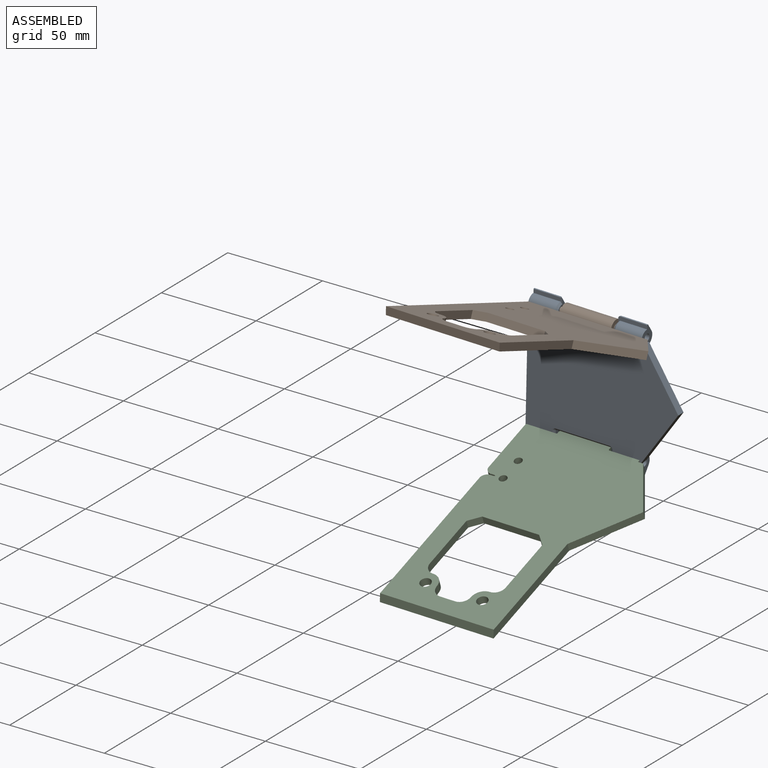
[diagram: assembled view]
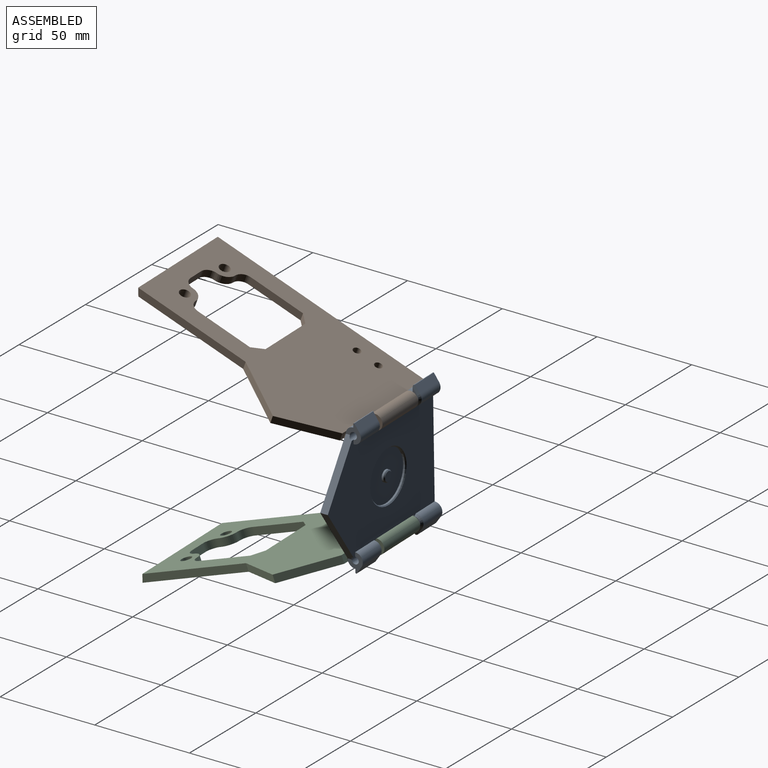
[diagram: assembled view, second angle]
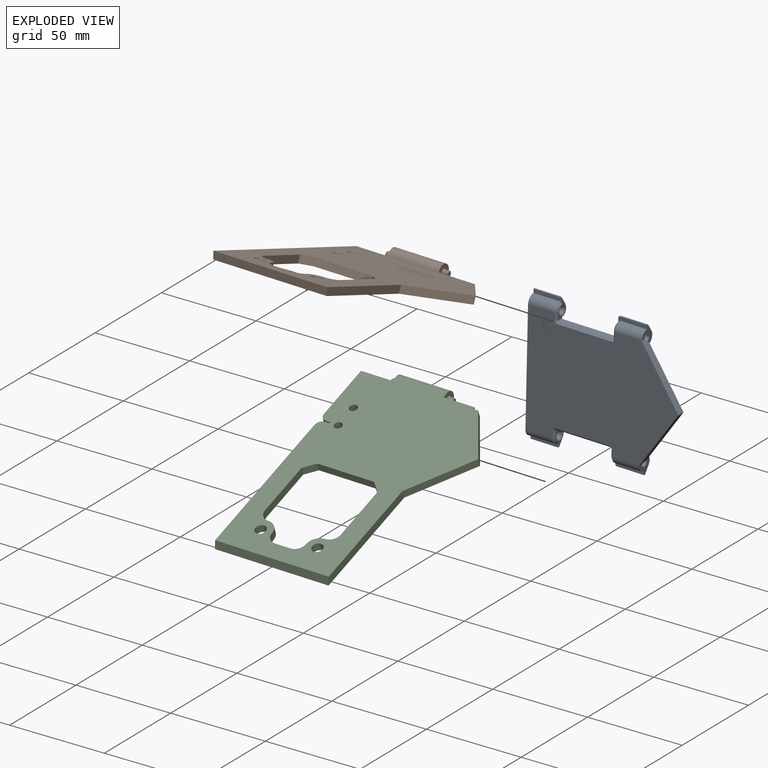
[diagram: exploded view]
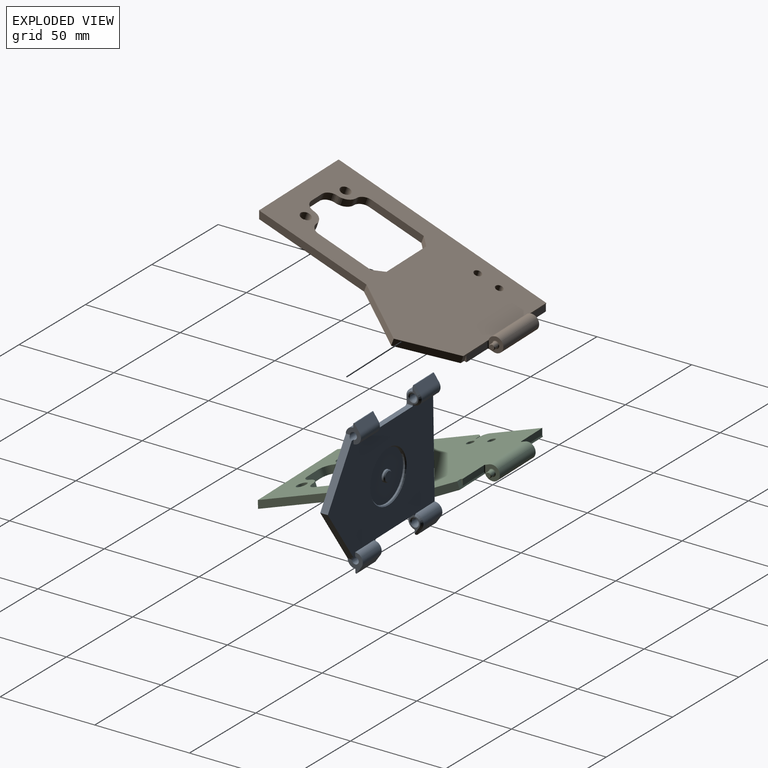
[diagram: exploded view, second angle]
ASSEMBLY  parts=3 mates=2
PART A: 73 faces, bbox 72.4x8x80 mm
  f0: cylinder r=4mm len=14.25mm, axis (0,0,1), area 89.5mm2, adj f4,f9,f39,f60
  f1: cylinder r=4mm len=14.25mm, axis (0,0,1), area 124.2mm2, adj f5,f20,f38,f43
  f2: cylinder r=4mm len=14.25mm, axis (0,0,1), area 89.5mm2, adj f4,f11,f35,f54
  f3: cylinder r=4mm len=14.25mm, axis (0,0,1), area 124.2mm2, adj f5,f9,f34,f45
  f4: plane 80x60mm, normal (0,-1,0), area 3886.9mm2, adj f0,f2,f7,f8,f9,f18,f21,f55
  f5: plane 80x56.3mm, normal (0,1,0), area 3126mm2, adj f1,f3,f8,f9,f10,f11,f12,f13
  f6: cylinder r=1.85mm len=14.75mm, axis (0,0,1), area 171.5mm2, adj f9,f27
  f7: cylinder r=4mm len=14.25mm, axis (0,0,1), area 89.5mm2, adj f4,f9,f33,f53
  f8: plane 30x20mm, normal (-0.55,0,-0.83), area 141mm2, adj f4,f5,f10,f11,f18
  f9: plane 72.36x8mm, normal (0,0,1), area 300.9mm2, adj f0,f3,f4,f5,f6,f7,f16,f17
  f10: cylinder r=1.85mm len=15.98mm, axis (0,0,1), area 173.7mm2, adj f5,f8,f11,f26
  f11: plane 10.18x8mm, normal (0,0,-1), area 33.1mm2, adj f2,f5,f8,f10,f12,f35,f36,f50
  f12: cylinder r=4mm len=14.25mm, axis (0,0,1), area 124.2mm2, adj f5,f11,f36,f47
  f13: plane 8.75x6mm, normal (0,0,-1), area 16.5mm2, adj f5,f27,f32,f33,f45,f46,f53,f55
  f14: plane 8.75x6mm, normal (0,0,1), area 16.5mm2, adj f5,f26,f31,f35,f47,f48,f54,f56
  f15: plane 28.5x3mm, normal (-1,0,0), area 85.5mm2, adj f5,f31,f32,f59
  f16: cylinder r=1.85mm len=14.75mm, axis (0,0,1), area 171.5mm2, adj f9,f28
  f17: cylinder r=4mm len=14.25mm, axis (0,0,1), area 124.2mm2, adj f5,f9,f40,f41
  f18: plane 30x20mm, normal (0.55,0,-0.83), area 141mm2, adj f4,f5,f8,f19,f20
  f19: cylinder r=1.85mm len=15.98mm, axis (0,0,1), area 173.7mm2, adj f5,f18,f20,f25
  f20: plane 10.18x8mm, normal (0,0,-1), area 33.1mm2, adj f1,f5,f18,f19,f21,f37,f38,f51
  f21: cylinder r=4mm len=14.25mm, axis (0,0,1), area 89.5mm2, adj f4,f20,f37,f61
  f22: plane 8.75x6mm, normal (0,0,-1), area 16.5mm2, adj f5,f28,f29,f39,f41,f42,f60,f62
  f23: plane 8.75x6mm, normal (0,0,1), area 16.5mm2, adj f5,f25,f30,f37,f43,f44,f61,f63
  f24: plane 28.5x3mm, normal (1,0,0), area 85.5mm2, adj f5,f29,f30,f66
  f25: cone r=2.35mm half-angle=45deg, axis (0,0,1), area 9.3mm2, adj f19,f23
  f26: cone r=1.85mm half-angle=45deg, axis (0,0,1), area 9.3mm2, adj f10,f14
  f27: cone r=2.35mm half-angle=45deg, axis (0,0,-1), area 9.3mm2, adj f6,f13
  f28: cone r=1.85mm half-angle=45deg, axis (0,0,-1), area 9.3mm2, adj f16,f22
  f29: cylinder r=0.5mm len=3mm, axis (0,1,0), area 2.4mm2, adj f5,f22,f24,f64
  f30: cylinder r=0.5mm len=3mm, axis (0,-1,0), area 2.4mm2, adj f5,f23,f24,f65
  f31: cylinder r=0.5mm len=3mm, axis (0,-1,0), area 2.4mm2, adj f5,f14,f15,f58
  f32: cylinder r=0.5mm len=3mm, axis (0,1,0), area 2.4mm2, adj f5,f13,f15,f57
  f33: plane 15.25x3mm, normal (0,-1,0), area 30.8mm2, adj f7,f9,f13,f46,f49,f53
  f34: plane 14.25x3.89mm, normal (-0.57,0.82,0), area 67.6mm2, adj f3,f9,f46,f49
  f35: plane 15.25x3mm, normal (0,-1,0), area 30.8mm2, adj f2,f11,f14,f48,f50,f54
  f36: plane 14.25x3.89mm, normal (-0.57,0.82,0), area 67.6mm2, adj f11,f12,f48,f50
  f37: plane 15.25x3mm, normal (0,-1,0), area 30.8mm2, adj f20,f21,f23,f44,f51,f61
  f38: plane 14.25x3.89mm, normal (0.57,0.82,0), area 67.6mm2, adj f1,f20,f44,f51
  f39: plane 15.25x3mm, normal (0,-1,0), area 30.8mm2, adj f0,f9,f22,f42,f52,f60
  f40: plane 14.25x3.89mm, normal (0.57,0.82,0), area 67.6mm2, adj f9,f17,f42,f52
  f41: cone r=4mm half-angle=45deg, axis (0,0,1), area 10.8mm2, adj f5,f17,f22,f42
  f42: plane 4.47x3.28mm, normal (0.4,0.58,-0.71), area 6.7mm2, adj f22,f39,f40,f41,f52
  f43: cone r=3mm half-angle=45deg, axis (0,0,-1), area 10.8mm2, adj f1,f5,f23,f44
  f44: plane 4.47x3.28mm, normal (0.4,0.58,0.71), area 6.7mm2, adj f23,f37,f38,f43,f51
  f45: cone r=3mm half-angle=45deg, axis (0,0,1), area 10.8mm2, adj f3,f5,f13,f46
  f46: plane 4.47x3.28mm, normal (-0.4,0.58,-0.71), area 6.7mm2, adj f13,f33,f34,f45,f49
  f47: cone r=4mm half-angle=45deg, axis (0,0,-1), area 10.8mm2, adj f5,f12,f14,f48
  f48: plane 4.47x3.28mm, normal (-0.4,0.58,0.71), area 6.7mm2, adj f14,f35,f36,f47,f50
  f49: plane 14.82x0.57mm, normal (-0.95,-0.3,0), area 8.7mm2, adj f9,f33,f34,f46
  f50: plane 14.82x0.57mm, normal (-0.95,-0.3,0), area 8.7mm2, adj f11,f35,f36,f48
  f51: plane 14.82x0.57mm, normal (0.95,-0.3,0), area 8.7mm2, adj f20,f37,f38,f44
  f52: plane 14.82x0.57mm, normal (0.95,-0.3,0), area 8.7mm2, adj f9,f39,f40,f42
  f53: cone r=4mm half-angle=45deg, axis (0,0,1), area 7.8mm2, adj f7,f13,f33,f55
  f54: cone r=3mm half-angle=45deg, axis (0,0,-1), area 7.8mm2, adj f2,f14,f35,f56
  f55: plane 3.5x1mm, normal (0,-0.71,-0.71), area 4.9mm2, adj f4,f13,f53,f57
  f56: plane 3.5x1mm, normal (0,-0.71,0.71), area 4.9mm2, adj f4,f14,f54,f58
  f57: cone r=1.5mm half-angle=45deg, axis (0,-1,0), area 2.2mm2, adj f4,f32,f55,f59
  f58: cone r=1.5mm half-angle=45deg, axis (0,-1,0), area 2.2mm2, adj f4,f31,f56,f59
  f59: plane 28.5x1mm, normal (-0.71,-0.71,0), area 40.3mm2, adj f4,f15,f57,f58
  f60: cone r=3mm half-angle=45deg, axis (0,0,1), area 7.8mm2, adj f0,f22,f39,f62
  f61: cone r=4mm half-angle=45deg, axis (0,0,-1), area 7.8mm2, adj f21,f23,f37,f63
  f62: plane 3.5x1mm, normal (0,-0.71,-0.71), area 4.9mm2, adj f4,f22,f60,f64
  f63: plane 3.5x1mm, normal (0,-0.71,0.71), area 4.9mm2, adj f4,f23,f61,f65
  f64: cone r=1.5mm half-angle=45deg, axis (0,-1,0), area 2.2mm2, adj f4,f29,f62,f66
  f65: cone r=1.5mm half-angle=45deg, axis (0,-1,0), area 2.2mm2, adj f4,f30,f63,f66
  f66: plane 28.5x1mm, normal (0.71,-0.71,0), area 40.3mm2, adj f4,f24,f64,f65
  f67: cylinder r=3mm len=6mm, axis (0,1,0), area 18.8mm2, adj f69,f71
  f68: cylinder r=13.25mm len=26.5mm, axis (0,1,0), area 83.3mm2, adj f69,f72
  f69: plane 26.5x26.5mm, normal (0,1,0), area 523.3mm2, adj f67,f68
  f70: plane 5x5mm, normal (0,1,0), area 19.6mm2, adj f71
  f71: cone r=2.5mm half-angle=45deg, axis (0,-1,0), area 12.2mm2, adj f67,f70
  f72: cone r=13.25mm half-angle=45deg, axis (0,1,0), area 60mm2, adj f5,f68
PART B: 41 faces, bbox 80x124x8.2 mm
  f0: plane 8x4mm, normal (0,1,0), area 32mm2, adj f5,f13,f38,f39
  f1: plane 16.45x0.8mm, normal (0,1,0), area 13.1mm2, adj f4,f5,f19,f25
  f2: plane 8x7.96mm, normal (1,0,0), area 37.2mm2, adj f6,f13,f22,f24
  f3: plane 8x7.96mm, normal (-1,0,0), area 37.2mm2, adj f6,f13,f23,f25
  f4: plane 117.16x4mm, normal (-1,0,0), area 463mm2, adj f1,f5,f13,f19,f30
  f5: plane 116x80mm, normal (0,0,1), area 5755mm2, adj f0,f1,f4,f6,f7,f8,f9,f10
  f6: cylinder r=4mm len=27.11mm, axis (-1,0,0), area 509mm2, adj f2,f3,f5,f13,f24,f25
  f7: plane 29x4mm, normal (1,0,0), area 116mm2, adj f5,f13,f32,f40
  f8: plane 30x4mm, normal (0,-1,0), area 120mm2, adj f5,f13,f31,f32
  f9: plane 29x4mm, normal (-1,0,0), area 116mm2, adj f5,f13,f31,f37
  f10: plane 60x4mm, normal (1,0,0), area 237.1mm2, adj f5,f11,f13,f30
  f11: plane 30x20mm, normal (0.83,-0.55,0), area 144.2mm2, adj f5,f10,f12,f13
  f12: plane 26x17.33mm, normal (0.83,0.55,0), area 125mm2, adj f5,f11,f13,f14
  f13: plane 118.54x80mm, normal (0,0,-1), area 5814.2mm2, adj f0,f2,f3,f4,f6,f7,f8,f9
  f14: plane 19.11x4mm, normal (0,1,0), area 23.7mm2, adj f5,f12,f13,f20,f21,f24
  f15: cylinder r=1.5mm len=3mm, axis (-1,0,0), area 21.2mm2, adj f22,f26
  f16: plane 2.5x2.5mm, normal (1,0,0), area 4.9mm2, adj f26
  f17: cylinder r=1.5mm len=3mm, axis (1,0,0), area 21.2mm2, adj f23,f27
  f18: plane 2.5x2.5mm, normal (-1,0,0), area 4.9mm2, adj f27
  f19: plane 16x3.2mm, normal (0,0.94,0.34), area 54.5mm2, adj f1,f4,f13,f25
  f20: plane 16x3.2mm, normal (0,0.94,0.34), area 54.5mm2, adj f13,f14,f21,f24
  f21: plane 3.2x1.16mm, normal (1,0,0), area 1.9mm2, adj f13,f14,f20
  f22: torus R=2mm, axis (-1,0,0), area 8.3mm2, adj f2,f15
  f23: torus R=2mm, axis (-1,0,0), area 8.3mm2, adj f3,f17
  f24: cylinder r=0.5mm len=4.73mm, axis (0,-0.34,0.94), area 3.1mm2, adj f2,f6,f13,f14,f20
  f25: cylinder r=0.5mm len=4.73mm, axis (0,0.34,-0.94), area 3.1mm2, adj f1,f3,f6,f13,f19
  f26: cone r=1.5mm half-angle=45deg, axis (-1,0,0), area 3.1mm2, adj f15,f16
  f27: cone r=1.5mm half-angle=45deg, axis (1,0,0), area 3.1mm2, adj f17,f18
  f28: cylinder r=2mm len=4mm, axis (0,0,-1), area 50.3mm2, adj f5,f13
  f29: cylinder r=2mm len=4mm, axis (0,0,-1), area 50.3mm2, adj f5,f13
  f30: plane 60x4mm, normal (0,-0.94,-0.34), area 255.4mm2, adj f4,f5,f10,f13
  f31: plane 5x5mm, normal (-0.71,-0.71,0), area 28.3mm2, adj f5,f8,f9,f13
  f32: plane 5x5mm, normal (0.71,-0.71,0), area 28.3mm2, adj f5,f7,f8,f13
  f33: cylinder r=6mm len=6mm, axis (0,0,1), area 37.7mm2, adj f5,f13,f39,f40
  f34: cylinder r=2.75mm len=5.5mm, axis (0,0,1), area 69.1mm2, adj f5,f13
  f35: cylinder r=6mm len=6mm, axis (0,0,1), area 37.7mm2, adj f5,f13,f37,f38
  f36: cylinder r=2.75mm len=5.5mm, axis (0,0,1), area 69.1mm2, adj f5,f13
  f37: cylinder r=5mm len=5mm, axis (0,0,1), area 31.4mm2, adj f5,f9,f13,f35
  f38: cylinder r=5mm len=5mm, axis (0,0,1), area 31.4mm2, adj f0,f5,f13,f35
  f39: cylinder r=5mm len=5mm, axis (0,0,1), area 31.4mm2, adj f0,f5,f13,f33
  f40: cylinder r=5mm len=5mm, axis (0,0,1), area 31.4mm2, adj f5,f7,f13,f33
PART C: 55 faces, bbox 80x124x8.2 mm
  f0: plane 8x4mm, normal (0,1,0), area 32mm2, adj f2,f3,f49,f50
  f1: plane 29.57x4mm, normal (-1,0,0), area 115.5mm2, adj f2,f3,f6,f20,f42
  f2: plane 116x80mm, normal (0,0,-1), area 5746.4mm2, adj f0,f1,f4,f5,f6,f9,f10,f11
  f3: plane 118.54x80mm, normal (0,0,1), area 5805.6mm2, adj f0,f1,f4,f5,f7,f8,f9,f10
  f4: plane 29x4mm, normal (1,0,0), area 116mm2, adj f2,f3,f33,f51
  f5: plane 29x4mm, normal (-1,0,0), area 116mm2, adj f2,f3,f32,f48
  f6: plane 16.45x0.8mm, normal (0,1,0), area 13.1mm2, adj f1,f2,f20,f24
  f7: plane 8x7.96mm, normal (1,0,0), area 37.2mm2, adj f3,f10,f23,f26
  f8: plane 8x7.96mm, normal (-1,0,0), area 37.2mm2, adj f3,f10,f24,f25
  f9: plane 80.41x4mm, normal (-1,0,0), area 318.7mm2, adj f2,f3,f31,f41
  f10: cylinder r=4mm len=27.11mm, axis (-1,0,0), area 509mm2, adj f2,f3,f7,f8,f23,f24
  f11: plane 30x4mm, normal (0,-1,0), area 120mm2, adj f2,f3,f32,f33
  f12: plane 60x4mm, normal (1,0,0), area 237.1mm2, adj f2,f3,f13,f31
  f13: plane 30x20mm, normal (0.83,-0.55,0), area 144.2mm2, adj f2,f3,f12,f14
  f14: plane 26x17.33mm, normal (0.83,0.55,0), area 125mm2, adj f2,f3,f13,f15
  f15: plane 19.11x4mm, normal (0,1,0), area 23.7mm2, adj f2,f3,f14,f21,f22,f23
  f16: cylinder r=1.5mm len=3mm, axis (-1,0,0), area 21.2mm2, adj f26,f28
  f17: plane 2.5x2.5mm, normal (1,0,0), area 4.9mm2, adj f28
  f18: cylinder r=1.5mm len=3mm, axis (1,0,0), area 21.2mm2, adj f25,f27
  f19: plane 2.5x2.5mm, normal (-1,0,0), area 4.9mm2, adj f27
  f20: plane 16x3.2mm, normal (0,0.94,-0.34), area 54.5mm2, adj f1,f3,f6,f24
  f21: plane 16x3.2mm, normal (0,0.94,-0.34), area 54.5mm2, adj f3,f15,f22,f23
  f22: plane 3.2x1.16mm, normal (1,0,0), area 1.9mm2, adj f3,f15,f21
  f23: cylinder r=0.5mm len=4.73mm, axis (0,-0.34,-0.94), area 3.1mm2, adj f3,f7,f10,f15,f21
  f24: cylinder r=0.5mm len=4.73mm, axis (0,0.34,0.94), area 3.1mm2, adj f3,f6,f8,f10,f20
  f25: torus R=2mm, axis (-1,0,0), area 8.3mm2, adj f8,f18
  f26: torus R=2mm, axis (-1,0,0), area 8.3mm2, adj f7,f16
  f27: cone r=1.25mm half-angle=45deg, axis (1,0,0), area 3.1mm2, adj f18,f19
  f28: cone r=1.25mm half-angle=45deg, axis (-1,0,0), area 3.1mm2, adj f16,f17
  f29: cylinder r=2mm len=4mm, axis (0,0,-1), area 50.3mm2, adj f2,f3
  f30: cylinder r=2mm len=4mm, axis (0,0,-1), area 50.3mm2, adj f2,f3
  f31: plane 60x4mm, normal (0,-0.94,0.34), area 255.4mm2, adj f2,f3,f9,f12
  f32: plane 5x5mm, normal (-0.71,-0.71,0), area 28.3mm2, adj f2,f3,f5,f11
  f33: plane 5x5mm, normal (0.71,-0.71,0), area 28.3mm2, adj f2,f3,f4,f11
  f34: plane 4x0.71mm, normal (-0.33,0.94,0), area 3mm2, adj f2,f3,f53,f54
  f35: plane 4x1.74mm, normal (0,1,0), area 7mm2, adj f2,f3,f40,f53
  f36: plane 4x1.74mm, normal (0,-1,0), area 7mm2, adj f2,f3,f43,f52
  f37: plane 4x0.71mm, normal (-0.33,-0.94,0), area 3mm2, adj f2,f3,f52,f54
  f38: plane 4x0.24mm, normal (-0.71,-0.71,0), area 1.4mm2, adj f2,f3,f42,f43
  f39: plane 4x0.24mm, normal (-0.71,0.71,0), area 1.4mm2, adj f2,f3,f40,f41
  f40: cylinder r=3mm len=4mm, axis (0,0,1), area 9.4mm2, adj f2,f3,f35,f39
  f41: cylinder r=3mm len=4mm, axis (0,0,1), area 9.4mm2, adj f2,f3,f9,f39
  f42: cylinder r=3mm len=4mm, axis (0,0,1), area 9.4mm2, adj f1,f2,f3,f38
  f43: cylinder r=3mm len=4mm, axis (0,0,-1), area 9.4mm2, adj f2,f3,f36,f38
  f44: cylinder r=6mm len=6mm, axis (0,0,1), area 37.7mm2, adj f2,f3,f50,f51
  f45: cylinder r=2.75mm len=5.5mm, axis (0,0,1), area 69.1mm2, adj f2,f3
  f46: cylinder r=6mm len=6mm, axis (0,0,1), area 37.7mm2, adj f2,f3,f48,f49
  f47: cylinder r=2.75mm len=5.5mm, axis (0,0,1), area 69.1mm2, adj f2,f3
  f48: cylinder r=5mm len=5mm, axis (0,0,1), area 31.4mm2, adj f2,f3,f5,f46
  f49: cylinder r=5mm len=5mm, axis (0,0,1), area 31.4mm2, adj f0,f2,f3,f46
  f50: cylinder r=5mm len=5mm, axis (0,0,1), area 31.4mm2, adj f0,f2,f3,f44
  f51: cylinder r=5mm len=5mm, axis (0,0,1), area 31.4mm2, adj f2,f3,f4,f44
  f52: cylinder r=0.1mm len=4mm, axis (0,0,-1), area 0.1mm2, adj f2,f3,f36,f37
  f53: cylinder r=0.1mm len=4mm, axis (0,0,1), area 0.1mm2, adj f2,f3,f34,f35
  f54: cylinder r=0.1mm len=4mm, axis (0,0,1), area 1mm2, adj f2,f3,f34,f37
PLACE A rot(axis=(0,-1,0),88.7deg) t=(-34.98,0,-29.21)mm
PLACE B rot(axis=(-1,0.06,0.01),20deg) t=(-33.53,-2.74,23.25)mm
PLACE C rot(axis=(1,0.06,-0.01),20deg) t=(-34.73,0,-29.21)mm
MATE revolute A.f6 <-> C.f10  axis (-1,0,0.02) through (9.76,0,-30.23)mm
MATE revolute A.f25 <-> B.f26  axis (-1,0,0.02) through (11.13,0,29.75)mm
